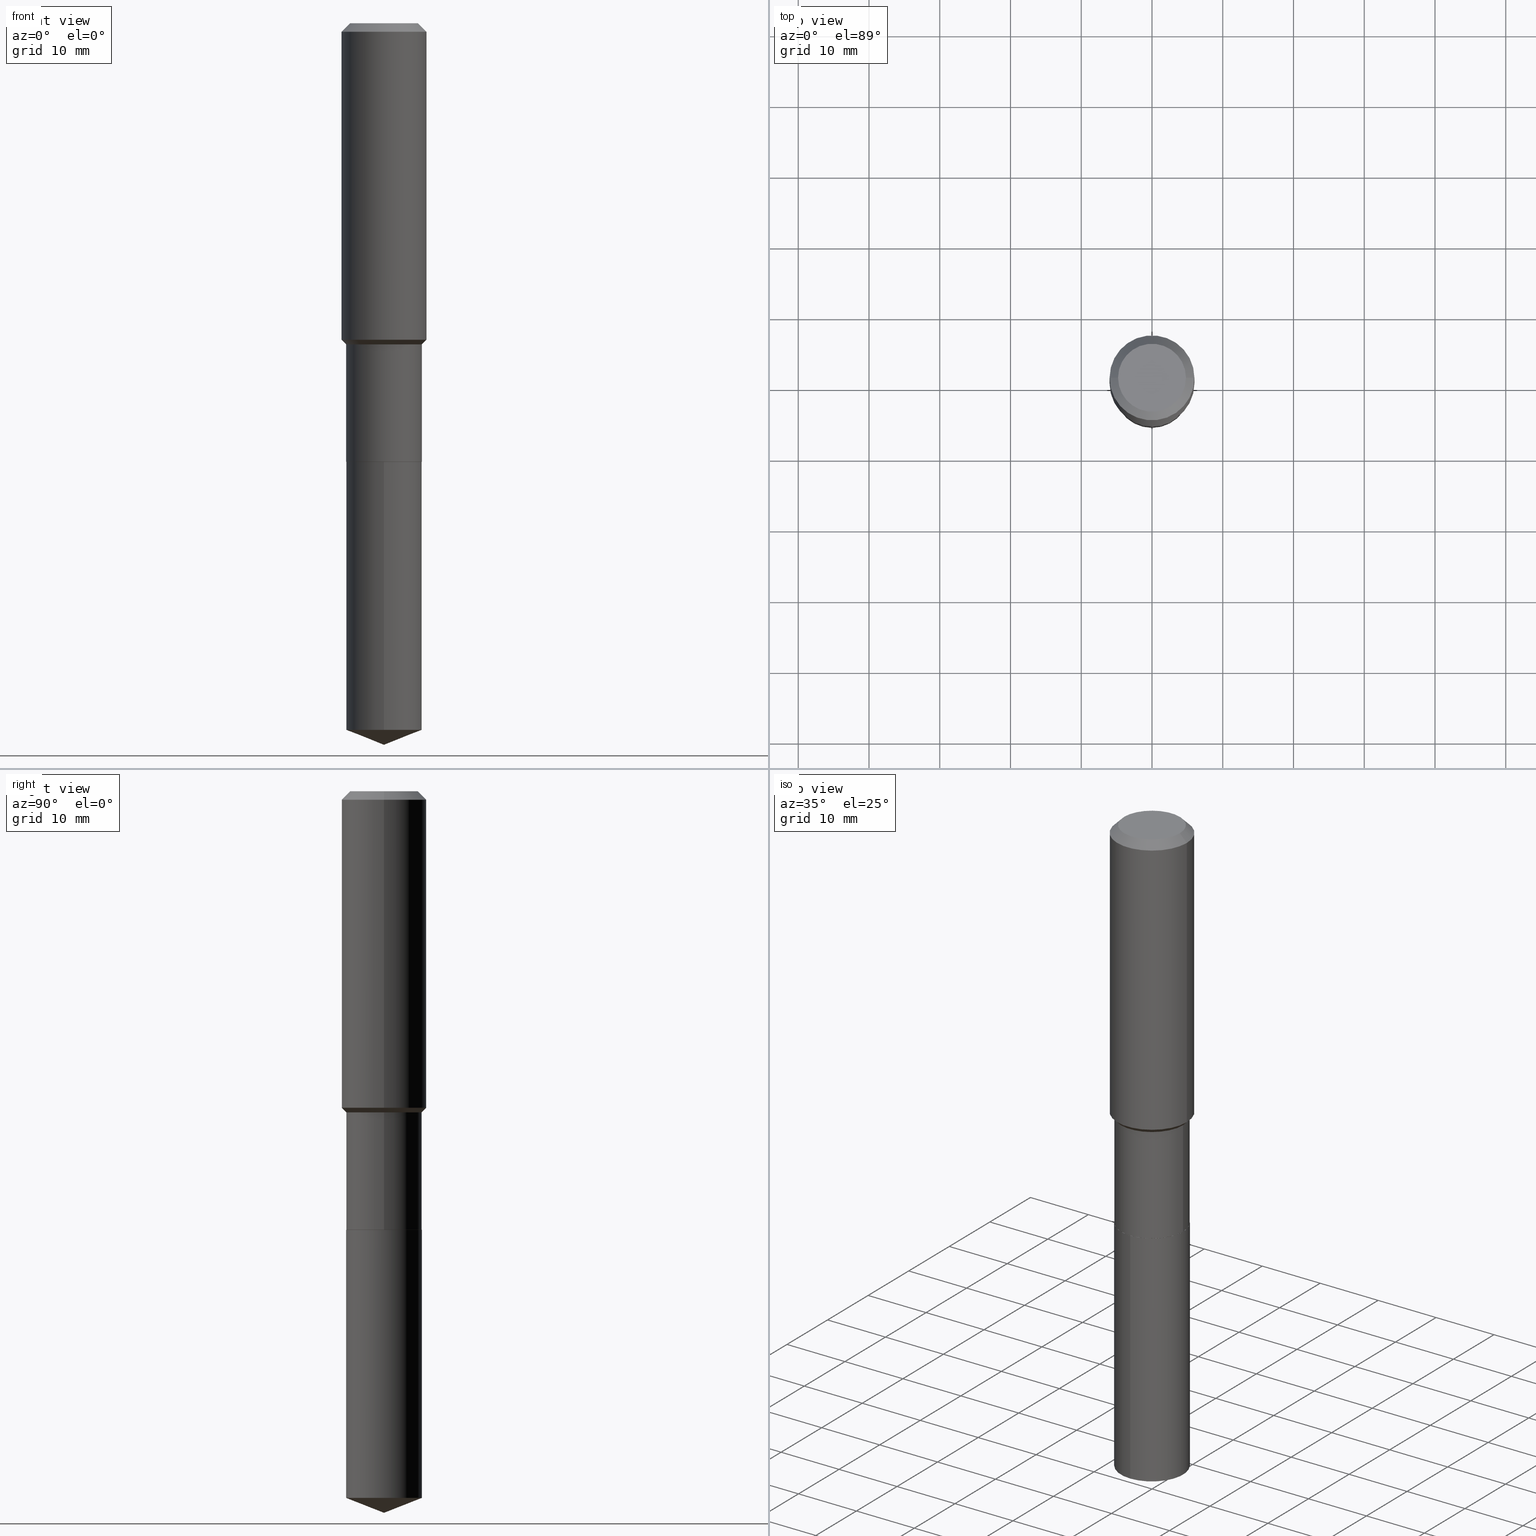
[diagram: canonical four-view strip — front | top / right | iso, engineering-drawing reading convention]
A machine part, canonical four-view strip (front | top / right | iso — engineering-drawing reading convention). The complete STEP part file that produces these views, byte-faithful:
ISO-10303-21;
HEADER;
FILE_DESCRIPTION (( 'STEP AP203' ),
    '1' );
FILE_NAME ('66477.STEP',
    '2024-04-24T23:25:44',
    ( '' ),
    ( '' ),
    'SwSTEP 2.0',
    'SolidWorks 2023',
    '' );
FILE_SCHEMA (( 'CONFIG_CONTROL_DESIGN' ));
ENDSEC;

DATA;
#1 = AXIS2_PLACEMENT_3D ( 'NONE', #80, #89, #40 ) ;
#2 = CIRCLE ( 'NONE', #397, 0.2106500000000000039 ) ;
#3 = ORIENTED_EDGE ( 'NONE', *, *, #489, .T. ) ;
#4 =( LENGTH_UNIT ( ) NAMED_UNIT ( * ) SI_UNIT ( $, .METRE. ) );
#5 = DIRECTION ( 'NONE',  ( -1.000000000000000000, 6.982962677686265922E-15, -4.876176775795935793E-29 ) ) ;
#6 = DIRECTION ( 'NONE',  ( 2.445399602320894128E-29, -3.491580442715579660E-15, -1.000000000000000000 ) ) ;
#7 = LOCAL_TIME ( 19, 25, 44.00000000000000000, #255 ) ;
#8 = DESIGN_CONTEXT ( 'detailed design', #103, 'design' ) ;
#9 = DIRECTION ( 'NONE',  ( 1.000000000000000000, -6.982962677686265922E-15, 4.876176775795935793E-29 ) ) ;
#10 = LINE ( 'NONE', #95, #282 ) ;
#11 = ORIENTED_EDGE ( 'NONE', *, *, #126, .F. ) ;
#12 = AXIS2_PLACEMENT_3D ( 'NONE', #359, #65, #482 ) ;
#13 = DIRECTION ( 'NONE',  ( -0.7071067811865453523, 2.468850131082234184E-15, -0.7071067811865496822 ) ) ;
#14 = ORIENTED_EDGE ( 'NONE', *, *, #229, .T. ) ;
#15 = LINE ( 'NONE', #357, #260 ) ;
#16 = APPLICATION_PROTOCOL_DEFINITION ( 'international standard', 'config_control_design', 1994, #55 ) ;
#17 = DIMENSIONAL_EXPONENTS ( 1.000000000000000000, 0.000000000000000000, 0.000000000000000000, 0.000000000000000000, 0.000000000000000000, 0.000000000000000000, 0.000000000000000000 ) ;
#18 = DIRECTION ( 'NONE',  ( 1.000000000000000000, -6.982962677686266711E-15, 4.876176775795935793E-29 ) ) ;
#19 = APPROVAL_STATUS ( 'not_yet_approved' ) ;
#20 = ORIENTED_EDGE ( 'NONE', *, *, #28, .F. ) ;
#21 = AXIS2_PLACEMENT_3D ( 'NONE', #401, #199, #351 ) ;
#22 = EDGE_LOOP ( 'NONE', ( #338, #14, #57, #267 ) ) ;
#23 = MECHANICAL_CONTEXT ( 'NONE', #55, 'mechanical' ) ;
#24 = AXIS2_PLACEMENT_3D ( 'NONE', #438, #306, #352 ) ;
#25 = AXIS2_PLACEMENT_3D ( 'NONE', #54, #191, #190 ) ;
#26 = DIRECTION ( 'NONE',  ( 1.000000000000000000, -6.982962677686265922E-15, 0.000000000000000000 ) ) ;
#27 = APPROVAL_STATUS ( 'not_yet_approved' ) ;
#28 = EDGE_CURVE ( 'NONE', #286, #47, #483, .T. ) ;
#29 = CARTESIAN_POINT ( 'NONE',  ( 5.969144809017299038E-29, -8.522356799982232966E-15, -2.440900000000000070 ) ) ;
#30 = DIRECTION ( 'NONE',  ( 1.000000000000000000, -6.982962677686268288E-15, 0.000000000000000000 ) ) ;
#31 = DIRECTION ( 'NONE',  ( -1.000000000000000000, 6.982962677686266711E-15, 0.000000000000000000 ) ) ;
#32 = EDGE_LOOP ( 'NONE', ( #471, #202, #235, #402 ) ) ;
#33 = AXIS2_PLACEMENT_3D ( 'NONE', #365, #93, #211 ) ;
#34 = FACE_OUTER_BOUND ( 'NONE', #304, .T. ) ;
#35 = ORIENTED_EDGE ( 'NONE', *, *, #133, .T. ) ;
#36 = ADVANCED_FACE ( 'NONE', ( #154 ), #369, .T. ) ;
#37 = CARTESIAN_POINT ( 'NONE',  ( 1.155239464041865506E-30, -1.649375784469511859E-16, -0.04724000000000028177 ) ) ;
#38 = PERSON_AND_ORGANIZATION_ROLE ( 'design_supplier' ) ;
#39 = ORIENTED_EDGE ( 'NONE', *, *, #469, .F. ) ;
#40 = DIRECTION ( 'NONE',  ( -6.982962677686265922E-15, -1.000000000000000000, 3.890597664843479129E-15 ) ) ;
#41 = EDGE_CURVE ( 'NONE', #249, #398, #176, .T. ) ;
#42 = AXIS2_PLACEMENT_3D ( 'NONE', #130, #459, #465 ) ;
#43 = EDGE_CURVE ( 'NONE', #245, #283, #97, .T. ) ;
#44 = DIRECTION ( 'NONE',  ( -2.445468806185136597E-29, 3.491481338843145583E-15, 1.000000000000000000 ) ) ;
#45 = DIRECTION ( 'NONE',  ( -2.445468806185136877E-29, 3.491481338843145188E-15, 1.000000000000000000 ) ) ;
#46 = ADVANCED_FACE ( 'NONE', ( #415 ), #452, .T. ) ;
#47 = VERTEX_POINT ( 'NONE', #223 ) ;
#48 = FACE_OUTER_BOUND ( 'NONE', #467, .T. ) ;
#49 = VECTOR ( 'NONE', #427, 39.37007874015748143 ) ;
#50 = DIRECTION ( 'NONE',  ( -6.982962677686265922E-15, -1.000000000000000000, 3.890597664843479129E-15 ) ) ;
#51 = ORIENTED_EDGE ( 'NONE', *, *, #68, .T. ) ;
#52 = DIRECTION ( 'NONE',  ( 1.000000000000000000, -6.982962677686267499E-15, 0.000000000000000000 ) ) ;
#53 = CC_DESIGN_PERSON_AND_ORGANIZATION_ASSIGNMENT ( #111, #188, ( #106 ) ) ;
#54 = CARTESIAN_POINT ( 'NONE',  ( 5.969144809017300159E-29, -8.522356799982234543E-15, -2.440900000000000070 ) ) ;
#55 = APPLICATION_CONTEXT ( 'configuration controlled 3d designs of mechanical parts and assemblies' ) ;
#56 = PERSON_AND_ORGANIZATION_ROLE ( 'design_owner' ) ;
#57 = ORIENTED_EDGE ( 'NONE', *, *, #474, .T. ) ;
#58 = CYLINDRICAL_SURFACE ( 'NONE', #152, 0.2106500000000000039 ) ;
#59 = DIRECTION ( 'NONE',  ( -2.445399602320894408E-29, 3.491580442715579660E-15, 1.000000000000000000 ) ) ;
#60 = VERTEX_POINT ( 'NONE', #142 ) ;
#61 = CIRCLE ( 'NONE', #385, 0.2106499999999999484 ) ;
#62 = CONICAL_SURFACE ( 'NONE', #91, 99.94676754583966272, 1.195550537616118403 ) ;
#63 = ORIENTED_EDGE ( 'NONE', *, *, #384, .T. ) ;
#64 = CARTESIAN_POINT ( 'NONE',  ( 1.496758272878746916E-15, 0.2106499999999914274, -2.440900000000000514 ) ) ;
#65 = DIRECTION ( 'NONE',  ( -2.445399602320894408E-29, 3.491580442715579660E-15, 1.000000000000000000 ) ) ;
#66 = PRODUCT ( '66477', '66477', '', ( #23 ) ) ;
#67 = CALENDAR_DATE ( 2024, 24, 4 ) ;
#68 = EDGE_CURVE ( 'NONE', #329, #473, #301, .T. ) ;
#69 = ADVANCED_FACE ( 'NONE', ( #257 ), #362, .T. ) ;
#70 = APPROVAL_PERSON_ORGANIZATION ( #480, #281, #167 ) ;
#71 = DIRECTION ( 'NONE',  ( -2.445468806185136597E-29, 3.491481338843145583E-15, 1.000000000000000000 ) ) ;
#72 = CARTESIAN_POINT ( 'NONE',  ( -4.713871149261273121E-47, 6.730158695841826722E-33, 1.927594061857931128E-18 ) ) ;
#73 = ORIENTED_EDGE ( 'NONE', *, *, #43, .F. ) ;
#74 = CARTESIAN_POINT ( 'NONE',  ( -1.470961088054516309E-15, -0.2106500000000137707, -3.932722758311712585 ) ) ;
#75 = EDGE_LOOP ( 'NONE', ( #360, #388, #277, #11 ) ) ;
#76 = AXIS2_PLACEMENT_3D ( 'NONE', #181, #344, #486 ) ;
#77 = AXIS2_PLACEMENT_3D ( 'NONE', #101, #263, #30 ) ;
#78 = AXIS2_PLACEMENT_3D ( 'NONE', #117, #472, #423 ) ;
#79 = EDGE_CURVE ( 'NONE', #403, #422, #124, .T. ) ;
#80 = CARTESIAN_POINT ( 'NONE',  ( 5.969144809017299038E-29, -8.522356799982232966E-15, -2.440900000000000070 ) ) ;
#81 = EDGE_LOOP ( 'NONE', ( #386, #425 ) ) ;
#82 = DIRECTION ( 'NONE',  ( 6.611014441532063434E-15, 0.9304175679820266831, 0.3665012267242914734 ) ) ;
#83 = LOCAL_TIME ( 19, 25, 44.00000000000000000, #302 ) ;
#84 = CARTESIAN_POINT ( 'NONE',  ( -9.427742298522546243E-47, 1.346031739168365344E-32, 3.855188123715862256E-18 ) ) ;
#85 = CYLINDRICAL_SURFACE ( 'NONE', #105, 0.2106499999999999762 ) ;
#86 = DIRECTION ( 'NONE',  ( -2.438088387897960049E-29, 3.491481338843145188E-15, 1.000000000000000000 ) ) ;
#87 = EDGE_CURVE ( 'NONE', #434, #163, #464, .T. ) ;
#88 = CARTESIAN_POINT ( 'NONE',  ( -1.470961088054552202E-15, -0.2106500000000085526, -2.440899999999999181 ) ) ;
#89 = DIRECTION ( 'NONE',  ( -2.445399602320894408E-29, 3.491580442715579660E-15, 1.000000000000000000 ) ) ;
#90 = AXIS2_PLACEMENT_3D ( 'NONE', #244, #291, #96 ) ;
#91 = AXIS2_PLACEMENT_3D ( 'NONE', #476, #59, #331 ) ;
#92 = ORIENTED_EDGE ( 'NONE', *, *, #238, .T. ) ;
#93 = DIRECTION ( 'NONE',  ( -2.445399602320894408E-29, 3.491580442715579660E-15, 1.000000000000000000 ) ) ;
#94 = EDGE_LOOP ( 'NONE', ( #214, #127, #51, #174 ) ) ;
#95 = CARTESIAN_POINT ( 'NONE',  ( 0.2101500000000000035, -9.989826406698003297E-15, -2.440900000000000070 ) ) ;
#96 = DIRECTION ( 'NONE',  ( 1.000000000000000000, -6.982962677686266711E-15, 4.876185090822587894E-29 ) ) ;
#97 = CIRCLE ( 'NONE', #206, 0.2106500000000000039 ) ;
#98 = EDGE_LOOP ( 'NONE', ( #189, #63, #485, #336 ) ) ;
#99 = DIRECTION ( 'NONE',  ( -2.445468806185136597E-29, 3.491481338843145583E-15, 1.000000000000000000 ) ) ;
#100 = ORIENTED_EDGE ( 'NONE', *, *, #180, .F. ) ;
#101 = CARTESIAN_POINT ( 'NONE',  ( 5.969144809017300159E-29, -8.522356799982234543E-15, -2.440900000000000070 ) ) ;
#102 = CALENDAR_DATE ( 2024, 24, 4 ) ;
#103 = APPLICATION_CONTEXT ( 'configuration controlled 3d designs of mechanical parts and assemblies' ) ;
#104 = DIRECTION ( 'NONE',  ( 1.000000000000000000, -6.982962677686268288E-15, 0.000000000000000000 ) ) ;
#105 = AXIS2_PLACEMENT_3D ( 'NONE', #321, #121, #463 ) ;
#106 = SECURITY_CLASSIFICATION ( '', '', #308 ) ;
#107 = LINE ( 'NONE', #414, #421 ) ;
#108 = DIRECTION ( 'NONE',  ( -6.497071151882117470E-15, -0.9304175679820241296, 0.3665012267242980792 ) ) ;
#109 = LINE ( 'NONE', #265, #484 ) ;
#110 = CARTESIAN_POINT ( 'NONE',  ( 5.967922074614207358E-29, -8.520611059312812251E-15, -2.440399999999999903 ) ) ;
#111 = PERSON_AND_ORGANIZATION ( #458, #217 ) ;
#112 = CARTESIAN_POINT ( 'NONE',  ( 0.2106499999999999484, -7.710587388701196730E-15, -1.787099999999999911 ) ) ;
#113 = CARTESIAN_POINT ( 'NONE',  ( -0.1889600000000000168, 1.401969416799070942E-15, 3.855188123706346622E-18 ) ) ;
#114 = AXIS2_PLACEMENT_3D ( 'NONE', #29, #311, #460 ) ;
#115 = PERSON_AND_ORGANIZATION ( #458, #217 ) ;
#116 = EDGE_LOOP ( 'NONE', ( #312, #20, #430, #35 ) ) ;
#117 = CARTESIAN_POINT ( 'NONE',  ( 4.370297303533457201E-29, -6.239626300646584969E-15, -1.787099999999999911 ) ) ;
#118 = ADVANCED_FACE ( 'NONE', ( #488 ), #262, .T. ) ;
#119 = DIRECTION ( 'NONE',  ( 1.000000000000000000, -6.982962677686266711E-15, 4.876185090822587894E-29 ) ) ;
#120 = DIRECTION ( 'NONE',  ( 1.000000000000000000, -6.982962677686267499E-15, 0.000000000000000000 ) ) ;
#121 = DIRECTION ( 'NONE',  ( -2.445468806185136597E-29, 3.491481338843145583E-15, 1.000000000000000000 ) ) ;
#122 = ORIENTED_EDGE ( 'NONE', *, *, #318, .T. ) ;
#123 = LINE ( 'NONE', #433, #166 ) ;
#124 = CIRCLE ( 'NONE', #268, 0.2101500000000000035 ) ;
#125 = CARTESIAN_POINT ( 'NONE',  ( 4.370297303533457201E-29, -6.239626300646584969E-15, -1.787099999999999911 ) ) ;
#126 = EDGE_CURVE ( 'NONE', #60, #298, #61, .T. ) ;
#127 = ORIENTED_EDGE ( 'NONE', *, *, #180, .T. ) ;
#128 = VECTOR ( 'NONE', #159, 39.37007874015748143 ) ;
#129 = CC_DESIGN_APPROVAL ( #281, ( #448 ) ) ;
#130 = CARTESIAN_POINT ( 'NONE',  ( 0.000000000000000000, 0.000000000000000000, 0.000000000000000000 ) ) ;
#131 = ORIENTED_EDGE ( 'NONE', *, *, #325, .T. ) ;
#132 = DIRECTION ( 'NONE',  ( -6.982962677686265922E-15, -1.000000000000000000, 3.890597664843479129E-15 ) ) ;
#133 = EDGE_CURVE ( 'NONE', #163, #398, #348, .T. ) ;
#134 = ORIENTED_EDGE ( 'NONE', *, *, #145, .F. ) ;
#135 = FACE_OUTER_BOUND ( 'NONE', #322, .T. ) ;
#136 = ORIENTED_EDGE ( 'NONE', *, *, #79, .T. ) ;
#137 = APPROVAL_STATUS ( 'not_yet_approved' ) ;
#138 = VECTOR ( 'NONE', #450, 39.37007874015748143 ) ;
#139 = ORIENTED_EDGE ( 'NONE', *, *, #87, .F. ) ;
#140 =( GEOMETRIC_REPRESENTATION_CONTEXT ( 3 ) GLOBAL_UNCERTAINTY_ASSIGNED_CONTEXT ( ( #246 ) ) GLOBAL_UNIT_ASSIGNED_CONTEXT ( ( #470, #161, #278 ) ) REPRESENTATION_CONTEXT ( 'NONE', 'WORKASPACE' ) );
#141 = EDGE_LOOP ( 'NONE', ( #3, #455, #356, #205 ) ) ;
#142 = CARTESIAN_POINT ( 'NONE',  ( -0.2106499999999999484, -5.883360407101046752E-15, -1.787099999999999911 ) ) ;
#143 = DIRECTION ( 'NONE',  ( 2.445468806185136597E-29, -3.491481338843145583E-15, -1.000000000000000000 ) ) ;
#144 = PERSON_AND_ORGANIZATION ( #458, #217 ) ;
#145 = EDGE_CURVE ( 'NONE', #403, #283, #15, .T. ) ;
#146 = LOCAL_TIME ( 19, 25, 44.00000000000000000, #285 ) ;
#147 = FACE_OUTER_BOUND ( 'NONE', #116, .T. ) ;
#148 = ORIENTED_EDGE ( 'NONE', *, *, #41, .T. ) ;
#149 = EDGE_LOOP ( 'NONE', ( #139, #416, #148, #171 ) ) ;
#150 = CARTESIAN_POINT ( 'NONE',  ( 9.617247588926023246E-29, -1.373117596690142215E-14, -3.932722758311713029 ) ) ;
#151 = ADVANCED_FACE ( 'NONE', ( #389 ), #156, .F. ) ;
#152 = AXIS2_PLACEMENT_3D ( 'NONE', #404, #330, #132 ) ;
#153 = CARTESIAN_POINT ( 'NONE',  ( 1.496758272878747508E-15, 0.2106499999999863482, -3.932722758311713473 ) ) ;
#154 = FACE_OUTER_BOUND ( 'NONE', #22, .T. ) ;
#155 = ORIENTED_EDGE ( 'NONE', *, *, #254, .F. ) ;
#156 = PLANE ( 'NONE',  #314 ) ;
#157 = CIRCLE ( 'NONE', #33, 0.2106500000000000039 ) ;
#158 = CIRCLE ( 'NONE', #350, 0.2106500000000000039 ) ;
#159 = DIRECTION ( 'NONE',  ( 0.7071067811865453523, -7.319954787623248157E-15, -0.7071067811865496822 ) ) ;
#160 = CARTESIAN_POINT ( 'NONE',  ( 4.307815575535426705E-29, -6.150418952439141798E-15, -1.761549999999999727 ) ) ;
#161 =( NAMED_UNIT ( * ) PLANE_ANGLE_UNIT ( ) SI_UNIT ( $, .RADIAN. ) );
#162 = CARTESIAN_POINT ( 'NONE',  ( -0.2361999999999999933, 1.484438206022545019E-15, -0.04724000000000028177 ) ) ;
#163 = VERTEX_POINT ( 'NONE', #239 ) ;
#164 = FACE_OUTER_BOUND ( 'NONE', #98, .T. ) ;
#165 = AXIS2_PLACEMENT_3D ( 'NONE', #419, #6, #461 ) ;
#166 = VECTOR ( 'NONE', #240, 39.37007874015748143 ) ;
#167 = APPROVAL_ROLE ( '' ) ;
#168 = CARTESIAN_POINT ( 'NONE',  ( 4.307815575535426705E-29, -6.150418952439141798E-15, -1.761549999999999727 ) ) ;
#169 = DIRECTION ( 'NONE',  ( 0.7071067811864267805, -2.468850131080992517E-15, 0.7071067811866682540 ) ) ;
#170 = APPROVAL_ROLE ( '' ) ;
#171 = ORIENTED_EDGE ( 'NONE', *, *, #133, .F. ) ;
#172 = CC_DESIGN_PERSON_AND_ORGANIZATION_ASSIGNMENT ( #177, #341, ( #448 ) ) ;
#173 = DATE_AND_TIME ( #335, #146 ) ;
#174 = ORIENTED_EDGE ( 'NONE', *, *, #435, .F. ) ;
#175 = EDGE_CURVE ( 'NONE', #47, #286, #361, .T. ) ;
#176 = LINE ( 'NONE', #339, #303 ) ;
#177 = PERSON_AND_ORGANIZATION ( #458, #217 ) ;
#178 = VERTEX_POINT ( 'NONE', #64 ) ;
#179 = AXIS2_PLACEMENT_3D ( 'NONE', #413, #71, #218 ) ;
#180 = EDGE_CURVE ( 'NONE', #228, #329, #157, .T. ) ;
#181 = CARTESIAN_POINT ( 'NONE',  ( 4.370297303533457201E-29, -6.239626300646584969E-15, -1.787099999999999911 ) ) ;
#182 = APPROVAL_ROLE ( '' ) ;
#183 = CARTESIAN_POINT ( 'NONE',  ( -0.2106499999999999484, -4.742868027767933900E-15, -1.787099999999999911 ) ) ;
#184 = DIRECTION ( 'NONE',  ( -1.000000000000000000, 6.982962677686266711E-15, 0.000000000000000000 ) ) ;
#185 = CARTESIAN_POINT ( 'NONE',  ( -1.470961088054552202E-15, -0.2106500000000085526, -2.440899999999999181 ) ) ;
#186 = CONICAL_SURFACE ( 'NONE', #12, 99.94676754583966272, 1.195550537616118403 ) ;
#187 = ADVANCED_BREP_SHAPE_REPRESENTATION ( '66477', ( #437, #272, #42 ), #140 ) ;
#188 = PERSON_AND_ORGANIZATION_ROLE ( 'classification_officer' ) ;
#189 = ORIENTED_EDGE ( 'NONE', *, *, #273, .T. ) ;
#190 = DIRECTION ( 'NONE',  ( 1.000000000000000000, -6.982962677686268288E-15, 0.000000000000000000 ) ) ;
#191 = DIRECTION ( 'NONE',  ( -2.445468806185136597E-29, 3.491481338843145583E-15, 1.000000000000000000 ) ) ;
#192 = ADVANCED_FACE ( 'NONE', ( #446 ), #399, .T. ) ;
#193 = VECTOR ( 'NONE', #45, 39.37007874015748143 ) ;
#194 = CIRCLE ( 'NONE', #21, 0.2361999999999999933 ) ;
#195 = ORIENTED_EDGE ( 'NONE', *, *, #387, .T. ) ;
#196 = DIRECTION ( 'NONE',  ( -2.445468806185136597E-29, 3.491481338843145583E-15, 1.000000000000000000 ) ) ;
#197 = ADVANCED_FACE ( 'NONE', ( #164 ), #58, .T. ) ;
#198 = FACE_OUTER_BOUND ( 'NONE', #243, .T. ) ;
#199 = DIRECTION ( 'NONE',  ( -2.445468806185136597E-29, 3.491481338843145583E-15, 1.000000000000000000 ) ) ;
#200 = VECTOR ( 'NONE', #108, 39.37007874015748854 ) ;
#201 = DIRECTION ( 'NONE',  ( -0.7071067811864267805, 7.493145998869918709E-15, 0.7071067811866682540 ) ) ;
#202 = ORIENTED_EDGE ( 'NONE', *, *, #126, .T. ) ;
#203 = DATE_AND_TIME ( #400, #305 ) ;
#204 = DATE_AND_TIME ( #102, #323 ) ;
#205 = ORIENTED_EDGE ( 'NONE', *, *, #41, .F. ) ;
#206 = AXIS2_PLACEMENT_3D ( 'NONE', #110, #378, #26 ) ;
#207 = ORIENTED_EDGE ( 'NONE', *, *, #28, .T. ) ;
#208 = DIRECTION ( 'NONE',  ( -2.445468806185136597E-29, 3.491481338843145583E-15, 1.000000000000000000 ) ) ;
#209 = CYLINDRICAL_SURFACE ( 'NONE', #355, 0.2106499999999999762 ) ;
#210 = ORIENTED_EDGE ( 'NONE', *, *, #145, .T. ) ;
#211 = DIRECTION ( 'NONE',  ( -6.982962677686265922E-15, -1.000000000000000000, 2.593731776562319814E-15 ) ) ;
#212 = CARTESIAN_POINT ( 'NONE',  ( 0.000000000000000000, 0.000000000000000000, 0.000000000000000000 ) ) ;
#213 = DATE_TIME_ROLE ( 'classification_date' ) ;
#214 = ORIENTED_EDGE ( 'NONE', *, *, #384, .F. ) ;
#215 = DIRECTION ( 'NONE',  ( -2.445468806185136877E-29, 3.491481338843145188E-15, 1.000000000000000000 ) ) ;
#216 = PERSON_AND_ORGANIZATION ( #458, #217 ) ;
#217 = ORGANIZATION ( 'UNSPECIFIED', 'UNSPECIFIED', '' ) ;
#218 = DIRECTION ( 'NONE',  ( 1.000000000000000000, -6.982962677686265922E-15, 0.000000000000000000 ) ) ;
#219 = DIRECTION ( 'NONE',  ( 2.438088387897960049E-29, -3.491481338843145188E-15, -1.000000000000000000 ) ) ;
#220 = EDGE_CURVE ( 'NONE', #434, #249, #280, .T. ) ;
#221 = ADVANCED_FACE ( 'NONE', ( #287 ), #225, .T. ) ;
#222 = CC_DESIGN_PERSON_AND_ORGANIZATION_ASSIGNMENT ( #216, #56, ( #66 ) ) ;
#223 = CARTESIAN_POINT ( 'NONE',  ( 0.1889600000000000168, -1.540873453589747738E-15, 3.855188123725863225E-18 ) ) ;
#224 = ORIENTED_EDGE ( 'NONE', *, *, #489, .F. ) ;
#225 = CONICAL_SURFACE ( 'NONE', #354, 0.2106499999999999484, 0.7853981633974489451 ) ;
#226 = AXIS2_PLACEMENT_3D ( 'NONE', #72, #219, #5 ) ;
#227 = ADVANCED_FACE ( 'NONE', ( #426 ), #85, .T. ) ;
#228 = VERTEX_POINT ( 'NONE', #153 ) ;
#229 = EDGE_CURVE ( 'NONE', #47, #398, #237, .T. ) ;
#230 = PLANE ( 'NONE',  #226 ) ;
#231 = ORIENTED_EDGE ( 'NONE', *, *, #387, .F. ) ;
#232 = DIRECTION ( 'NONE',  ( 1.000000000000000000, -6.982962677686266711E-15, 0.000000000000000000 ) ) ;
#233 = DIRECTION ( 'NONE',  ( -2.445399602320894408E-29, 3.491580442715579660E-15, 1.000000000000000000 ) ) ;
#234 = LINE ( 'NONE', #394, #193 ) ;
#235 = ORIENTED_EDGE ( 'NONE', *, *, #254, .T. ) ;
#236 = CC_DESIGN_APPROVAL ( #334, ( #468 ) ) ;
#237 = LINE ( 'NONE', #392, #128 ) ;
#238 = EDGE_CURVE ( 'NONE', #283, #60, #234, .T. ) ;
#239 = CARTESIAN_POINT ( 'NONE',  ( -0.2361999999999999933, -1.479376323577688976E-15, -0.04724000000000028177 ) ) ;
#240 = DIRECTION ( 'NONE',  ( -2.445399602320894689E-29, 3.491580442715579660E-15, 1.000000000000000000 ) ) ;
#241 = FACE_OUTER_BOUND ( 'NONE', #149, .T. ) ;
#242 = ADVANCED_FACE ( 'NONE', ( #48 ), #293, .T. ) ;
#243 = EDGE_LOOP ( 'NONE', ( #373, #122, #100 ) ) ;
#244 = CARTESIAN_POINT ( 'NONE',  ( -9.427742298522546243E-47, 1.346031739168365344E-32, 3.855188123715862256E-18 ) ) ;
#245 = VERTEX_POINT ( 'NONE', #490 ) ;
#246 = UNCERTAINTY_MEASURE_WITH_UNIT (LENGTH_MEASURE( 1.000000000000000082E-05 ), #470, 'distance_accuracy_value', 'NONE');
#247 = ADVANCED_FACE ( 'NONE', ( #147 ), #420, .T. ) ;
#248 = CIRCLE ( 'NONE', #78, 0.2106499999999999484 ) ;
#249 = VERTEX_POINT ( 'NONE', #269 ) ;
#250 = ADVANCED_FACE ( 'NONE', ( #347 ), #307, .F. ) ;
#251 = CARTESIAN_POINT ( 'NONE',  ( 0.000000000000000000, 0.000000000000000000, 0.000000000000000000 ) ) ;
#252 = CARTESIAN_POINT ( 'NONE',  ( 0.2361999999999999933, -1.814313362916447440E-15, -0.04724000000000028177 ) ) ;
#253 = AXIS2_PLACEMENT_3D ( 'NONE', #431, #196, #232 ) ;
#254 = EDGE_CURVE ( 'NONE', #298, #249, #109, .T. ) ;
#255 = COORDINATED_UNIVERSAL_TIME_OFFSET ( 5, 0, .BEHIND. ) ;
#256 = CARTESIAN_POINT ( 'NONE',  ( 0.2101500000000000035, -9.989826406698003297E-15, -2.440900000000000070 ) ) ;
#257 = FACE_OUTER_BOUND ( 'NONE', #436, .T. ) ;
#258 = PRODUCT_DEFINITION_SHAPE ( 'NONE', 'NONE',  #448 ) ;
#259 = ADVANCED_FACE ( 'NONE', ( #34 ), #230, .F. ) ;
#260 = VECTOR ( 'NONE', #201, 39.37007874015748143 ) ;
#261 = VECTOR ( 'NONE', #417, 39.37007874015748854 ) ;
#262 = CYLINDRICAL_SURFACE ( 'NONE', #1, 0.2106500000000000039 ) ;
#263 = DIRECTION ( 'NONE',  ( -2.445468806185136597E-29, 3.491481338843145583E-15, 1.000000000000000000 ) ) ;
#264 = VERTEX_POINT ( 'NONE', #383 ) ;
#265 = CARTESIAN_POINT ( 'NONE',  ( 0.2106499999999999484, -7.710587388701196730E-15, -1.787099999999999911 ) ) ;
#266 = DIRECTION ( 'NONE',  ( 2.445468806185136597E-29, -3.491481338843145583E-15, -1.000000000000000000 ) ) ;
#267 = ORIENTED_EDGE ( 'NONE', *, *, #479, .F. ) ;
#268 = AXIS2_PLACEMENT_3D ( 'NONE', #346, #315, #104 ) ;
#269 = CARTESIAN_POINT ( 'NONE',  ( 0.2362000000000002153, -7.799794736908639901E-15, -1.761549999999999727 ) ) ;
#270 = CARTESIAN_POINT ( 'NONE',  ( -0.2362000000000001043, 1.678301941865357380E-15, -1.161852468318209317E-29 ) ) ;
#271 = DIRECTION ( 'NONE',  ( -2.445468806185136597E-29, 3.491481338843145583E-15, 1.000000000000000000 ) ) ;
#272 = MANIFOLD_SOLID_BREP ( 'Body-Move/Copy2[2]', #390 ) ;
#273 = EDGE_CURVE ( 'NONE', #329, #228, #2, .T. ) ;
#274 = AXIS2_PLACEMENT_3D ( 'NONE', #319, #266, #31 ) ;
#275 = CARTESIAN_POINT ( 'NONE',  ( 3.753414775677078868E-29, -1.169540831924709376E-14, -2.440900000000000070 ) ) ;
#276 = LINE ( 'NONE', #162, #454 ) ;
#277 = ORIENTED_EDGE ( 'NONE', *, *, #418, .T. ) ;
#278 =( NAMED_UNIT ( * ) SI_UNIT ( $, .STERADIAN. ) SOLID_ANGLE_UNIT ( ) );
#279 = PRODUCT_RELATED_PRODUCT_CATEGORY ( 'detail', '', ( #66 ) ) ;
#280 = CIRCLE ( 'NONE', #443, 0.2362000000000002153 ) ;
#281 = APPROVAL ( #137, 'UNSPECIFIED' ) ;
#282 = VECTOR ( 'NONE', #169, 39.37007874015748143 ) ;
#283 = VERTEX_POINT ( 'NONE', #456 ) ;
#284 = CARTESIAN_POINT ( 'NONE',  ( -0.2101500000000000035, -7.026502013608272383E-15, -2.440900000000000070 ) ) ;
#285 = COORDINATED_UNIVERSAL_TIME_OFFSET ( 5, 0, .BEHIND. ) ;
#286 = VERTEX_POINT ( 'NONE', #113 ) ;
#287 = FACE_OUTER_BOUND ( 'NONE', #32, .T. ) ;
#288 = APPROVAL ( #19, 'UNSPECIFIED' ) ;
#289 = APPLICATION_PROTOCOL_DEFINITION ( 'international standard', 'config_control_design', 1994, #103 ) ;
#290 = ORIENTED_EDGE ( 'NONE', *, *, #328, .F. ) ;
#291 = DIRECTION ( 'NONE',  ( -2.445468806185136597E-29, 3.491481338843145583E-15, 1.000000000000000000 ) ) ;
#292 = APPROVAL_DATE_TIME ( #173, #288 ) ;
#293 = CONICAL_SURFACE ( 'NONE', #77, 0.2101500000000000035, 0.7853981633972775267 ) ;
#294 = VECTOR ( 'NONE', #447, 39.37007874015748143 ) ;
#295 = ORIENTED_EDGE ( 'NONE', *, *, #453, .F. ) ;
#296 = LINE ( 'NONE', #478, #294 ) ;
#297 = CALENDAR_DATE ( 2024, 24, 4 ) ;
#298 = VERTEX_POINT ( 'NONE', #112 ) ;
#299 = EDGE_CURVE ( 'NONE', #473, #178, #316, .T. ) ;
#300 = CARTESIAN_POINT ( 'NONE',  ( 9.819991183040015308E-29, -1.402113958381295106E-14, -4.015699999999999825 ) ) ;
#301 = LINE ( 'NONE', #185, #138 ) ;
#302 = COORDINATED_UNIVERSAL_TIME_OFFSET ( 5, 0, .BEHIND. ) ;
#303 = VECTOR ( 'NONE', #215, 39.37007874015748143 ) ;
#304 = EDGE_LOOP ( 'NONE', ( #207, #481 ) ) ;
#305 = LOCAL_TIME ( 19, 25, 44.00000000000000000, #375 ) ;
#306 = DIRECTION ( 'NONE',  ( -2.445468806185136597E-29, 3.491481338843145583E-15, 1.000000000000000000 ) ) ;
#307 = PLANE ( 'NONE',  #165 ) ;
#308 = SECURITY_CLASSIFICATION_LEVEL ( 'unclassified' ) ;
#309 = DIRECTION ( 'NONE',  ( -6.982962677686265922E-15, -1.000000000000000000, 2.593731776562319814E-15 ) ) ;
#310 = ORIENTED_EDGE ( 'NONE', *, *, #79, .F. ) ;
#311 = DIRECTION ( 'NONE',  ( -2.445399602320894408E-29, 3.491580442715579660E-15, 1.000000000000000000 ) ) ;
#312 = ORIENTED_EDGE ( 'NONE', *, *, #229, .F. ) ;
#313 = DIRECTION ( 'NONE',  ( -2.445468806185136597E-29, 3.491481338843145583E-15, 1.000000000000000000 ) ) ;
#314 = AXIS2_PLACEMENT_3D ( 'NONE', #275, #86, #9 ) ;
#315 = DIRECTION ( 'NONE',  ( -2.445468806185136597E-29, 3.491481338843145583E-15, 1.000000000000000000 ) ) ;
#316 = CIRCLE ( 'NONE', #114, 0.2106500000000000039 ) ;
#317 = DIRECTION ( 'NONE',  ( -2.445468806185136597E-29, 3.491481338843145583E-15, 1.000000000000000000 ) ) ;
#318 = EDGE_CURVE ( 'NONE', #264, #329, #382, .T. ) ;
#319 = CARTESIAN_POINT ( 'NONE',  ( 1.155239464041865506E-30, -1.649375784469511859E-16, -0.04724000000000028177 ) ) ;
#320 = ORIENTED_EDGE ( 'NONE', *, *, #43, .T. ) ;
#321 = CARTESIAN_POINT ( 'NONE',  ( 0.000000000000000000, 0.000000000000000000, 0.000000000000000000 ) ) ;
#322 = EDGE_LOOP ( 'NONE', ( #409, #327, #445 ) ) ;
#323 = LOCAL_TIME ( 19, 25, 44.00000000000000000, #487 ) ;
#324 = CC_DESIGN_PERSON_AND_ORGANIZATION_ASSIGNMENT ( #144, #38, ( #468 ) ) ;
#325 = EDGE_CURVE ( 'NONE', #60, #434, #451, .T. ) ;
#326 = LENGTH_MEASURE_WITH_UNIT ( LENGTH_MEASURE( 0.02539999999999999897 ), #4 );
#327 = ORIENTED_EDGE ( 'NONE', *, *, #358, .T. ) ;
#328 = EDGE_CURVE ( 'NONE', #283, #245, #391, .T. ) ;
#329 = VERTEX_POINT ( 'NONE', #74 ) ;
#330 = DIRECTION ( 'NONE',  ( -2.445399602320894408E-29, 3.491580442715579660E-15, 1.000000000000000000 ) ) ;
#331 = DIRECTION ( 'NONE',  ( -6.982962677686266711E-15, -1.000000000000000000, 3.498627837350014872E-15 ) ) ;
#332 = DATE_TIME_ROLE ( 'creation_date' ) ;
#333 = DIRECTION ( 'NONE',  ( 1.000000000000000000, -6.982962677686266711E-15, 0.000000000000000000 ) ) ;
#334 = APPROVAL ( #27, 'UNSPECIFIED' ) ;
#335 = CALENDAR_DATE ( 2024, 24, 4 ) ;
#336 = ORIENTED_EDGE ( 'NONE', *, *, #68, .F. ) ;
#337 = DIRECTION ( 'NONE',  ( 1.000000000000000000, -6.982962677686266711E-15, 4.876176775795935793E-29 ) ) ;
#338 = ORIENTED_EDGE ( 'NONE', *, *, #175, .F. ) ;
#339 = CARTESIAN_POINT ( 'NONE',  ( 0.2362000000000001043, -1.649375784469496920E-15, 1.151752954443000508E-29 ) ) ;
#340 = AXIS2_PLACEMENT_3D ( 'NONE', #160, #271, #353 ) ;
#341 = PERSON_AND_ORGANIZATION_ROLE ( 'creator' ) ;
#342 = ORIENTED_EDGE ( 'NONE', *, *, #469, .T. ) ;
#343 = DIRECTION ( 'NONE',  ( -2.445399602320894408E-29, 3.491580442715579660E-15, 1.000000000000000000 ) ) ;
#344 = DIRECTION ( 'NONE',  ( -2.445468806185136597E-29, 3.491481338843145583E-15, 1.000000000000000000 ) ) ;
#345 = APPROVAL_DATE_TIME ( #376, #281 ) ;
#346 = CARTESIAN_POINT ( 'NONE',  ( 5.969144809017300159E-29, -8.522356799982234543E-15, -2.440900000000000070 ) ) ;
#347 = FACE_OUTER_BOUND ( 'NONE', #81, .T. ) ;
#348 = CIRCLE ( 'NONE', #253, 0.2361999999999999933 ) ;
#349 = ORIENTED_EDGE ( 'NONE', *, *, #418, .F. ) ;
#350 = AXIS2_PLACEMENT_3D ( 'NONE', #428, #233, #50 ) ;
#351 = DIRECTION ( 'NONE',  ( 1.000000000000000000, -6.982962677686266711E-15, 0.000000000000000000 ) ) ;
#352 = DIRECTION ( 'NONE',  ( 1.000000000000000000, -6.982962677686268288E-15, 0.000000000000000000 ) ) ;
#353 = DIRECTION ( 'NONE',  ( 1.000000000000000000, -6.982962677686266711E-15, 0.000000000000000000 ) ) ;
#354 = AXIS2_PLACEMENT_3D ( 'NONE', #371, #313, #120 ) ;
#355 = AXIS2_PLACEMENT_3D ( 'NONE', #212, #442, #372 ) ;
#356 = ORIENTED_EDGE ( 'NONE', *, *, #474, .F. ) ;
#357 = CARTESIAN_POINT ( 'NONE',  ( -0.2101500000000000035, -7.029151240782384373E-15, -2.440900000000000070 ) ) ;
#358 = EDGE_CURVE ( 'NONE', #264, #228, #107, .T. ) ;
#359 = CARTESIAN_POINT ( 'NONE',  ( -8.645541479177115506E-28, 1.234428992761355637E-13, 35.35437874015748605 ) ) ;
#360 = ORIENTED_EDGE ( 'NONE', *, *, #238, .F. ) ;
#361 = CIRCLE ( 'NONE', #90, 0.1889600000000000168 ) ;
#362 = CONICAL_SURFACE ( 'NONE', #24, 0.2101500000000000035, 0.7853981633972775267 ) ;
#363 = CIRCLE ( 'NONE', #340, 0.2362000000000002153 ) ;
#364 = EDGE_LOOP ( 'NONE', ( #39, #310 ) ) ;
#365 = CARTESIAN_POINT ( 'NONE',  ( 9.617247588926023246E-29, -1.373117596690142215E-14, -3.932722758311713029 ) ) ;
#366 = APPROVAL_DATE_TIME ( #204, #334 ) ;
#367 = EDGE_LOOP ( 'NONE', ( #441, #131, #224, #155 ) ) ;
#368 = CC_DESIGN_DATE_AND_TIME_ASSIGNMENT ( #449, #332, ( #448 ) ) ;
#369 = CONICAL_SURFACE ( 'NONE', #274, 0.2361999999999999933, 0.7853981633974452814 ) ;
#370 = APPROVAL_PERSON_ORGANIZATION ( #407, #288, #170 ) ;
#371 = CARTESIAN_POINT ( 'NONE',  ( 4.370297303533457201E-29, -6.239626300646584969E-15, -1.787099999999999911 ) ) ;
#372 = DIRECTION ( 'NONE',  ( 1.000000000000000000, -6.982962677686266711E-15, 4.876176775795935793E-29 ) ) ;
#373 = ORIENTED_EDGE ( 'NONE', *, *, #358, .F. ) ;
#374 = DIRECTION ( 'NONE',  ( -2.445468806185136597E-29, 3.491481338843145583E-15, 1.000000000000000000 ) ) ;
#375 = COORDINATED_UNIVERSAL_TIME_OFFSET ( 5, 0, .BEHIND. ) ;
#376 = DATE_AND_TIME ( #67, #7 ) ;
#377 = AXIS2_PLACEMENT_3D ( 'NONE', #251, #99, #18 ) ;
#378 = DIRECTION ( 'NONE',  ( -2.445468806185136597E-29, 3.491481338843145583E-15, 1.000000000000000000 ) ) ;
#379 = CC_DESIGN_DATE_AND_TIME_ASSIGNMENT ( #203, #213, ( #106 ) ) ;
#380 = CIRCLE ( 'NONE', #25, 0.2101500000000000035 ) ;
#381 = PERSON_AND_ORGANIZATION ( #458, #217 ) ;
#382 = LINE ( 'NONE', #300, #200 ) ;
#383 = CARTESIAN_POINT ( 'NONE',  ( 9.819991183040015308E-29, -1.402113958381295422E-14, -4.015699999999999825 ) ) ;
#384 = EDGE_CURVE ( 'NONE', #228, #178, #123, .T. ) ;
#385 = AXIS2_PLACEMENT_3D ( 'NONE', #125, #44, #52 ) ;
#386 = ORIENTED_EDGE ( 'NONE', *, *, #299, .T. ) ;
#387 = EDGE_CURVE ( 'NONE', #422, #245, #10, .T. ) ;
#388 = ORIENTED_EDGE ( 'NONE', *, *, #328, .T. ) ;
#389 = FACE_OUTER_BOUND ( 'NONE', #364, .T. ) ;
#390 = CLOSED_SHELL ( 'NONE', ( #242, #36, #192, #46, #410, #227, #221, #412, #247, #259, #151, #69 ) ) ;
#391 = CIRCLE ( 'NONE', #179, 0.2106500000000000039 ) ;
#392 = CARTESIAN_POINT ( 'NONE',  ( 0.2361999999999999933, -1.785387205520586782E-15, -0.04724000000000028177 ) ) ;
#393 = CYLINDRICAL_SURFACE ( 'NONE', #462, 0.2362000000000001043 ) ;
#394 = CARTESIAN_POINT ( 'NONE',  ( -0.2106499999999999762, 1.496758272878650872E-15, -1.036173676762195916E-29 ) ) ;
#395 = ADVANCED_FACE ( 'NONE', ( #198 ), #62, .T. ) ;
#396 = ADVANCED_FACE ( 'NONE', ( #135 ), #186, .T. ) ;
#397 = AXIS2_PLACEMENT_3D ( 'NONE', #150, #343, #309 ) ;
#398 = VERTEX_POINT ( 'NONE', #252 ) ;
#399 = CYLINDRICAL_SURFACE ( 'NONE', #377, 0.2362000000000001043 ) ;
#400 = CALENDAR_DATE ( 2024, 24, 4 ) ;
#401 = CARTESIAN_POINT ( 'NONE',  ( 1.155239464041865506E-30, -1.649375784469511859E-16, -0.04724000000000028177 ) ) ;
#402 = ORIENTED_EDGE ( 'NONE', *, *, #220, .F. ) ;
#403 = VERTEX_POINT ( 'NONE', #284 ) ;
#404 = CARTESIAN_POINT ( 'NONE',  ( 5.969144809017299038E-29, -8.522356799982232966E-15, -2.440900000000000070 ) ) ;
#405 = FACE_OUTER_BOUND ( 'NONE', #477, .T. ) ;
#406 = AXIS2_PLACEMENT_3D ( 'NONE', #37, #143, #184 ) ;
#407 = PERSON_AND_ORGANIZATION ( #458, #217 ) ;
#408 = CC_DESIGN_PERSON_AND_ORGANIZATION_ASSIGNMENT ( #115, #457, ( #468 ) ) ;
#409 = ORIENTED_EDGE ( 'NONE', *, *, #318, .F. ) ;
#410 = ADVANCED_FACE ( 'NONE', ( #405 ), #209, .T. ) ;
#411 = CARTESIAN_POINT ( 'NONE',  ( -0.2362000000000002153, -4.472117010573783826E-15, -1.761549999999999727 ) ) ;
#412 = ADVANCED_FACE ( 'NONE', ( #241 ), #393, .T. ) ;
#413 = CARTESIAN_POINT ( 'NONE',  ( 5.967922074614207358E-29, -8.520611059312812251E-15, -2.440399999999999903 ) ) ;
#414 = CARTESIAN_POINT ( 'NONE',  ( 9.820331984917436461E-29, -1.402065577852850472E-14, -4.015699999999999825 ) ) ;
#415 = FACE_OUTER_BOUND ( 'NONE', #367, .T. ) ;
#416 = ORIENTED_EDGE ( 'NONE', *, *, #220, .T. ) ;
#417 = DIRECTION ( 'NONE',  ( -0.7071067811865479058, 7.493145998870355738E-15, 0.7071067811865470176 ) ) ;
#418 = EDGE_CURVE ( 'NONE', #245, #298, #296, .T. ) ;
#419 = CARTESIAN_POINT ( 'NONE',  ( 5.969144809017299038E-29, -8.522356799982232966E-15, -2.440900000000000070 ) ) ;
#420 = CONICAL_SURFACE ( 'NONE', #406, 0.2361999999999999933, 0.7853981633974452814 ) ;
#421 = VECTOR ( 'NONE', #82, 39.37007874015748854 ) ;
#422 = VERTEX_POINT ( 'NONE', #256 ) ;
#423 = DIRECTION ( 'NONE',  ( 1.000000000000000000, -6.982962677686267499E-15, 0.000000000000000000 ) ) ;
#424 = DIRECTION ( 'NONE',  ( 0.7071067811865479058, -2.468850131082261399E-15, 0.7071067811865470176 ) ) ;
#425 = ORIENTED_EDGE ( 'NONE', *, *, #435, .T. ) ;
#426 = FACE_OUTER_BOUND ( 'NONE', #75, .T. ) ;
#427 = DIRECTION ( 'NONE',  ( -2.445468806185136877E-29, 3.491481338843145188E-15, 1.000000000000000000 ) ) ;
#428 = CARTESIAN_POINT ( 'NONE',  ( 5.969144809017299038E-29, -8.522356799982232966E-15, -2.440900000000000070 ) ) ;
#429 = CLOSED_SHELL ( 'NONE', ( #197, #396, #395, #118, #250 ) ) ;
#430 = ORIENTED_EDGE ( 'NONE', *, *, #479, .T. ) ;
#431 = CARTESIAN_POINT ( 'NONE',  ( 1.155239464041865506E-30, -1.649375784469511859E-16, -0.04724000000000028177 ) ) ;
#432 = CC_DESIGN_SECURITY_CLASSIFICATION ( #106, ( #468 ) ) ;
#433 = CARTESIAN_POINT ( 'NONE',  ( 1.496758272878710628E-15, 0.2106499999999914829, -2.440900000000000514 ) ) ;
#434 = VERTEX_POINT ( 'NONE', #411 ) ;
#435 = EDGE_CURVE ( 'NONE', #178, #473, #158, .T. ) ;
#436 = EDGE_LOOP ( 'NONE', ( #134, #136, #195, #290 ) ) ;
#437 = MANIFOLD_SOLID_BREP ( 'Body-Move/Copy2[1]', #429 ) ;
#438 = CARTESIAN_POINT ( 'NONE',  ( 5.969144809017300159E-29, -8.522356799982234543E-15, -2.440900000000000070 ) ) ;
#439 = CARTESIAN_POINT ( 'NONE',  ( 0.000000000000000000, 0.000000000000000000, 0.000000000000000000 ) ) ;
#440 = SHAPE_DEFINITION_REPRESENTATION ( #258, #187 ) ;
#441 = ORIENTED_EDGE ( 'NONE', *, *, #453, .T. ) ;
#442 = DIRECTION ( 'NONE',  ( -2.445468806185136597E-29, 3.491481338843145583E-15, 1.000000000000000000 ) ) ;
#443 = AXIS2_PLACEMENT_3D ( 'NONE', #168, #208, #333 ) ;
#444 = CC_DESIGN_APPROVAL ( #288, ( #106 ) ) ;
#445 = ORIENTED_EDGE ( 'NONE', *, *, #273, .F. ) ;
#446 = FACE_OUTER_BOUND ( 'NONE', #141, .T. ) ;
#447 = DIRECTION ( 'NONE',  ( -2.445468806185136877E-29, 3.491481338843145188E-15, 1.000000000000000000 ) ) ;
#448 = PRODUCT_DEFINITION ( 'UNKNOWN', '', #468, #8 ) ;
#449 = DATE_AND_TIME ( #297, #83 ) ;
#450 = DIRECTION ( 'NONE',  ( -2.445399602320894689E-29, 3.491580442715579660E-15, 1.000000000000000000 ) ) ;
#451 = LINE ( 'NONE', #183, #261 ) ;
#452 = CONICAL_SURFACE ( 'NONE', #76, 0.2106499999999999484, 0.7853981633974489451 ) ;
#453 = EDGE_CURVE ( 'NONE', #298, #60, #248, .T. ) ;
#454 = VECTOR ( 'NONE', #13, 39.37007874015748143 ) ;
#455 = ORIENTED_EDGE ( 'NONE', *, *, #87, .T. ) ;
#456 = CARTESIAN_POINT ( 'NONE',  ( -0.2106500000000000039, -5.883360407101046752E-15, -2.440399999999999903 ) ) ;
#457 = PERSON_AND_ORGANIZATION_ROLE ( 'creator' ) ;
#458 = PERSON ( 'UNSPECIFIED', 'UNSPECIFIED', 'UNSPECIFIED', ('UNSPECIFIED'), ('UNSPECIFIED'), ('UNSPECIFIED') ) ;
#459 = DIRECTION ( 'NONE',  ( 0.000000000000000000, 0.000000000000000000, 1.000000000000000000 ) ) ;
#460 = DIRECTION ( 'NONE',  ( -6.982962677686265922E-15, -1.000000000000000000, 3.890597664843479129E-15 ) ) ;
#461 = DIRECTION ( 'NONE',  ( 6.982962677686265922E-15, 1.000000000000000000, -3.491580442715579660E-15 ) ) ;
#462 = AXIS2_PLACEMENT_3D ( 'NONE', #439, #374, #337 ) ;
#463 = DIRECTION ( 'NONE',  ( 1.000000000000000000, -6.982962677686266711E-15, 4.876176775795935793E-29 ) ) ;
#464 = LINE ( 'NONE', #270, #49 ) ;
#465 = DIRECTION ( 'NONE',  ( 1.000000000000000000, 0.000000000000000000, 0.000000000000000000 ) ) ;
#466 = AXIS2_PLACEMENT_3D ( 'NONE', #84, #317, #119 ) ;
#467 = EDGE_LOOP ( 'NONE', ( #342, #210, #73, #231 ) ) ;
#468 = PRODUCT_DEFINITION_FORMATION_WITH_SPECIFIED_SOURCE ( 'ANY', '', #66, .NOT_KNOWN. ) ;
#469 = EDGE_CURVE ( 'NONE', #422, #403, #380, .T. ) ;
#470 =( CONVERSION_BASED_UNIT ( 'INCH', #326 ) LENGTH_UNIT ( ) NAMED_UNIT ( #17 ) );
#471 = ORIENTED_EDGE ( 'NONE', *, *, #325, .F. ) ;
#472 = DIRECTION ( 'NONE',  ( -2.445468806185136597E-29, 3.491481338843145583E-15, 1.000000000000000000 ) ) ;
#473 = VERTEX_POINT ( 'NONE', #88 ) ;
#474 = EDGE_CURVE ( 'NONE', #398, #163, #194, .T. ) ;
#475 = APPROVAL_PERSON_ORGANIZATION ( #381, #334, #182 ) ;
#476 = CARTESIAN_POINT ( 'NONE',  ( -8.645541479177115506E-28, 1.234428992761355637E-13, 35.35437874015748605 ) ) ;
#477 = EDGE_LOOP ( 'NONE', ( #320, #92, #295, #349 ) ) ;
#478 = CARTESIAN_POINT ( 'NONE',  ( 0.2106499999999999762, -1.470961088054611958E-15, 1.027166637821413806E-29 ) ) ;
#479 = EDGE_CURVE ( 'NONE', #286, #163, #276, .T. ) ;
#480 = PERSON_AND_ORGANIZATION ( #458, #217 ) ;
#481 = ORIENTED_EDGE ( 'NONE', *, *, #175, .T. ) ;
#482 = DIRECTION ( 'NONE',  ( -6.982962677686266711E-15, -1.000000000000000000, 3.498627837350014872E-15 ) ) ;
#483 = CIRCLE ( 'NONE', #466, 0.1889600000000000168 ) ;
#484 = VECTOR ( 'NONE', #424, 39.37007874015748854 ) ;
#485 = ORIENTED_EDGE ( 'NONE', *, *, #299, .F. ) ;
#486 = DIRECTION ( 'NONE',  ( 1.000000000000000000, -6.982962677686267499E-15, 0.000000000000000000 ) ) ;
#487 = COORDINATED_UNIVERSAL_TIME_OFFSET ( 5, 0, .BEHIND. ) ;
#488 = FACE_OUTER_BOUND ( 'NONE', #94, .T. ) ;
#489 = EDGE_CURVE ( 'NONE', #249, #434, #363, .T. ) ;
#490 = CARTESIAN_POINT ( 'NONE',  ( 0.2106500000000000039, -9.991572147367424012E-15, -2.440399999999999903 ) ) ;
ENDSEC;
END-ISO-10303-21;
